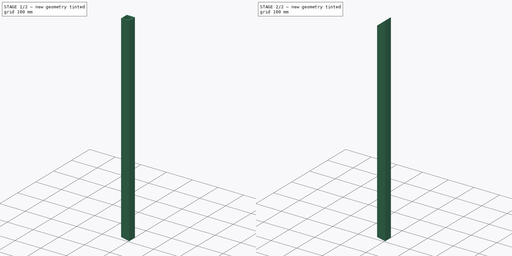
[diagram: build sequence overview — one tinted view per stage of 2, left to right]
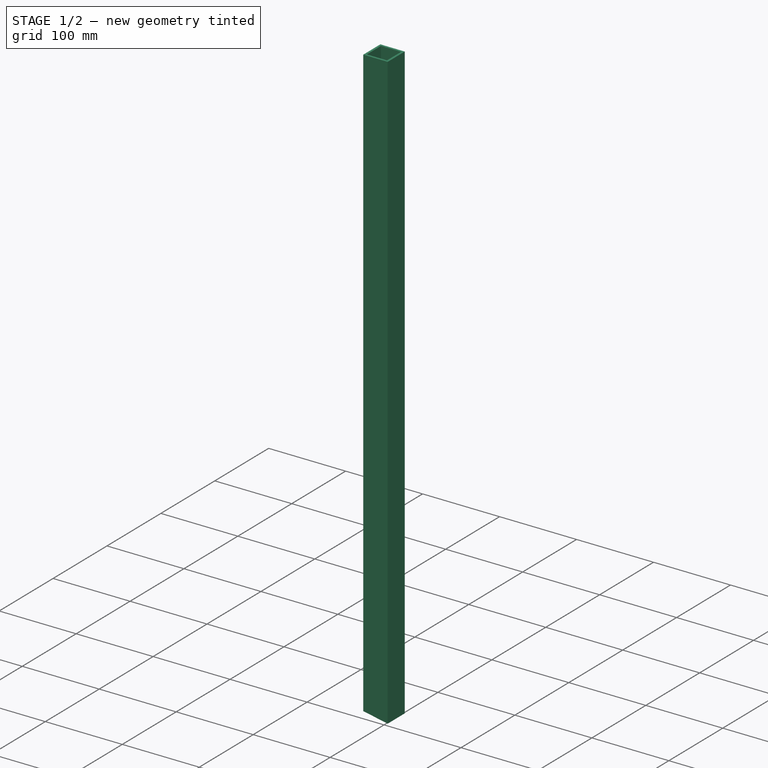
[diagram: stage 1 of 2 — iso view after this stage's code; geometry added in this stage tinted green]
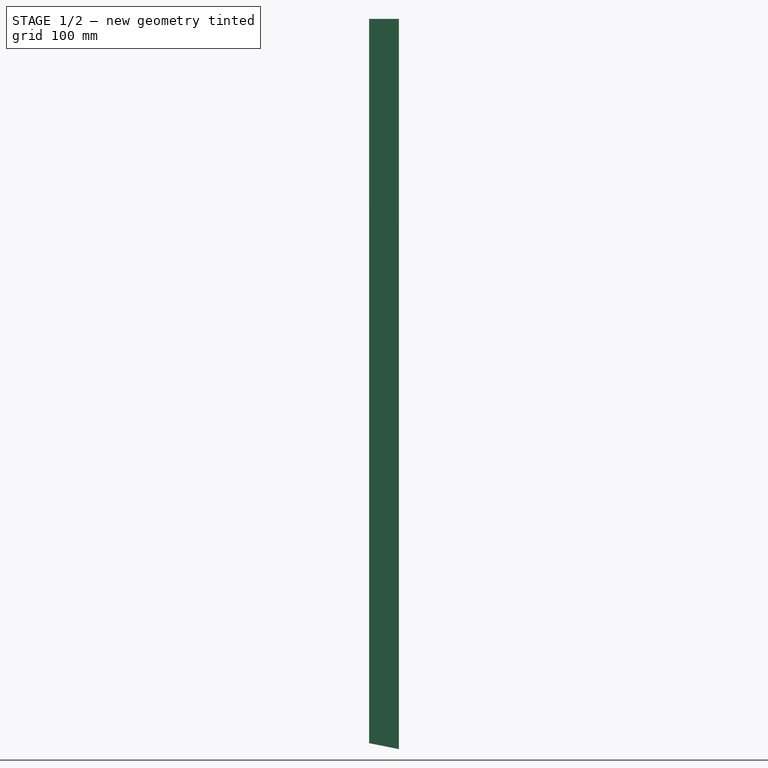
[diagram: stage 1 of 2 — front view after this stage's code; geometry added in this stage tinted green]
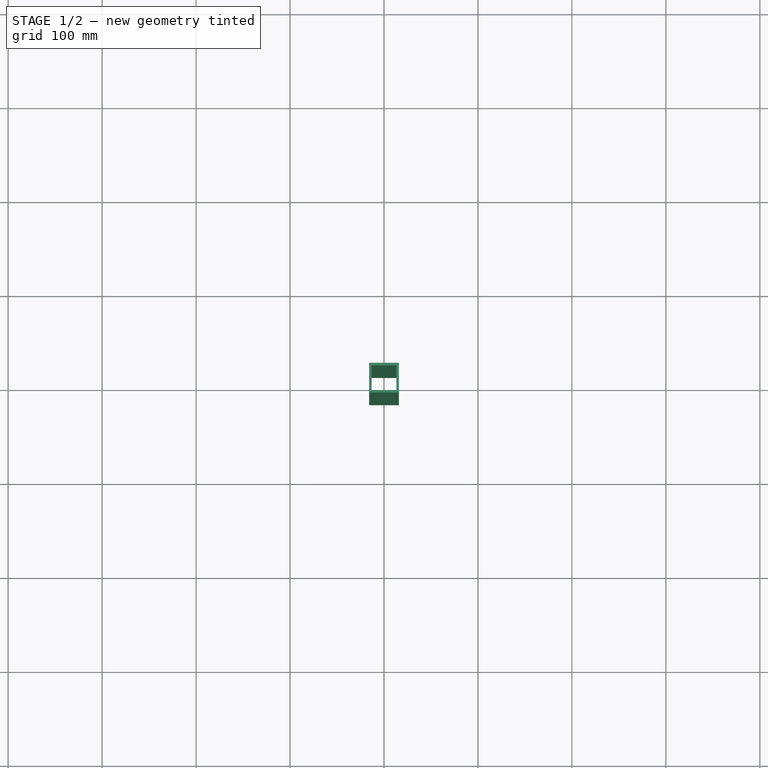
[diagram: stage 1 of 2 — top view after this stage's code; geometry added in this stage tinted green]
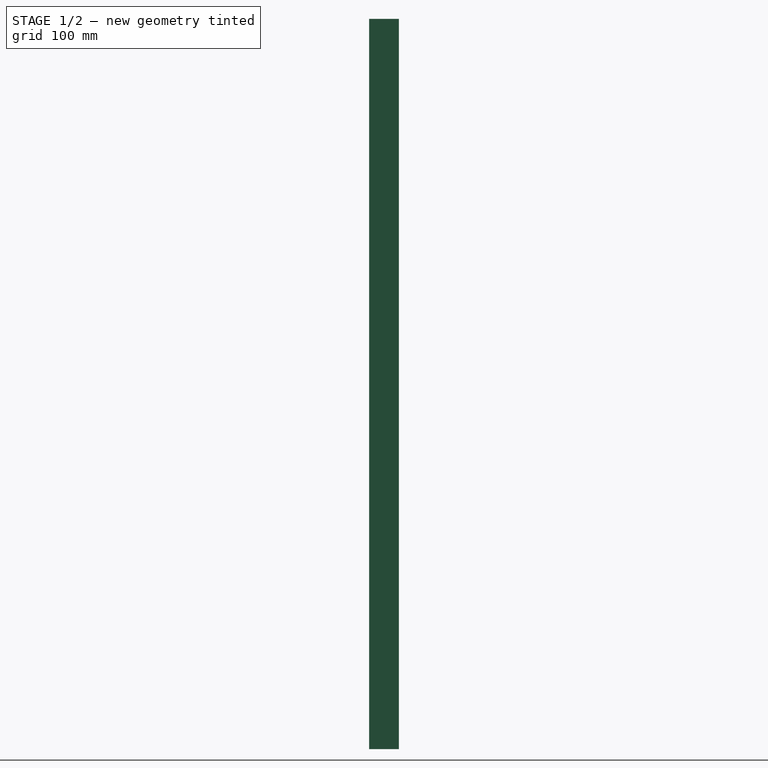
[diagram: stage 1 of 2 — right view after this stage's code; geometry added in this stage tinted green]
FCSTD DOCUMENT  (FreeCAD 0.16R6062 (Git))
Label: RollCage-Part-3
License: All rights reserved
LicenseURL: http://en.wikipedia.org/wiki/All_rights_reserved
objects: Sketcher::SketchObject×3, PartDesign::Pocket×2, PartDesign::Pad×1
note: 9 computed .brp shape members not serialized (recipe doc carries the construction recipe); baked Part::Feature solids carry a one-line shape summary decoded from their .brp

FEATURE [Sketcher::SketchObject] Sketch
  sketch-geometry (8):
    g0: LineSegment StartX=-15.875 StartY=15.875 StartZ=0 EndX=15.875 EndY=15.875 EndZ=0
    g1: LineSegment StartX=15.875 StartY=15.875 StartZ=0 EndX=15.875 EndY=-15.875 EndZ=0
    g2: LineSegment StartX=15.875 StartY=-15.875 StartZ=0 EndX=-15.875 EndY=-15.875 EndZ=0
    g3: LineSegment StartX=-15.875 StartY=-15.875 StartZ=0 EndX=-15.875 EndY=15.875 EndZ=0
    g4: LineSegment StartX=-13.1064 StartY=13.1064 StartZ=0 EndX=13.1064 EndY=13.1064 EndZ=0
    g5: LineSegment StartX=13.1064 StartY=13.1064 StartZ=0 EndX=13.1064 EndY=-13.1064 EndZ=0
    g6: LineSegment StartX=13.1064 StartY=-13.1064 StartZ=0 EndX=-13.1064 EndY=-13.1064 EndZ=0
    g7: LineSegment StartX=-13.1064 StartY=-13.1064 StartZ=0 EndX=-13.1064 EndY=13.1064 EndZ=0
  constraints (22):
    c: Coincident(g0,g1)
    c: Coincident(g1,g2)
    c: Coincident(g2,g3)
    c: Coincident(g3,g0)
    c: Horizontal(g0)
    c: Horizontal(g2)
    c: Vertical(g1)
    c: Vertical(g3)
    c: Equal(g2,g1)
    c: DistanceX(g0) = 31.75
    c: Symmetric(g1,g0,g-1)
    c: Coincident(g4,g5)
    c: Coincident(g5,g6)
    c: Coincident(g6,g7)
    c: Coincident(g7,g4)
    c: Horizontal(g4)
    c: Horizontal(g6)
    c: Vertical(g5)
    c: Vertical(g7)
    c: Equal(g6,g5)
    c: DistanceX(g4) = 26.2128
    c: Symmetric(g4,g5,g-1)
FEATURE [PartDesign::Pad] Pad
  Length = 777.09
  Length2 = 100
  Sketch = -> Sketch
  Type = 0
FEATURE [Sketcher::SketchObject] Sketch001
  ExternalGeometry = -> [Pad]
  Placement = pos=(0,-15.875,0) rot=(1,0,0;1.5708rad)
  Support = -> Pad [Face3]
  sketch-geometry (3):
    g0: LineSegment StartX=15.875 StartY=0 StartZ=0 EndX=-15.875 EndY=0 EndZ=0
    g1: LineSegment StartX=-15.875 StartY=0 StartZ=0 EndX=-15.875 EndY=6.34998 EndZ=0
    g2: LineSegment StartX=-15.875 StartY=6.34998 StartZ=0 EndX=15.875 EndY=0 EndZ=0
  constraints (7):
    c: Coincident(g-3,g0)
    c: Coincident(g0,g-3)
    c: Coincident(g0,g1)
    c: Vertical(g1)
    c: Coincident(g1,g2)
    c: Coincident(g2,g0)
    c: Angle(g2,g0) = 0.197395
FEATURE [PartDesign::Pocket] Pocket
  Length = 31.75
  Sketch = -> Sketch001
  Type = 0
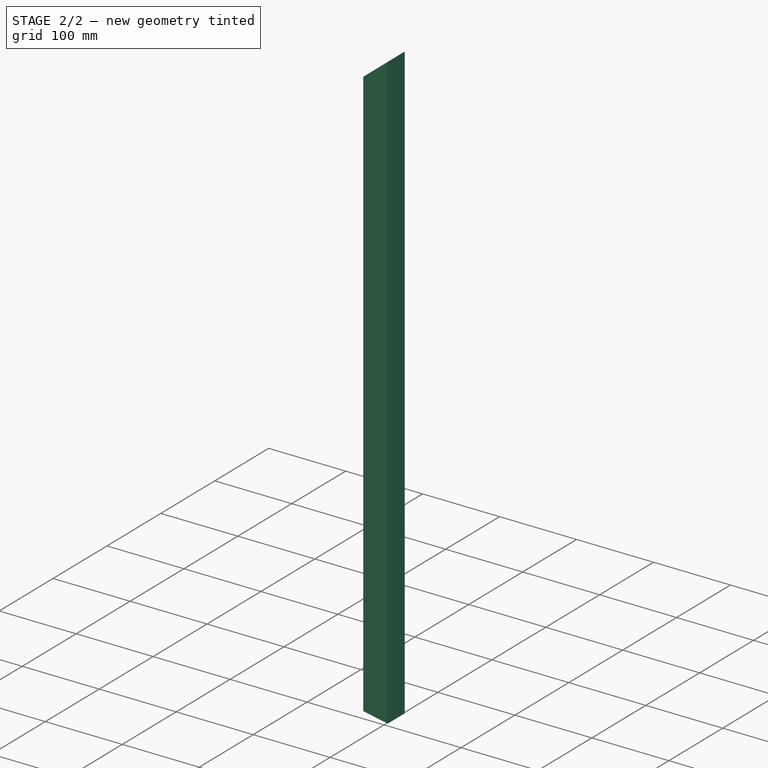
[diagram: stage 2 of 2 — iso view after this stage's code; geometry added in this stage tinted green]
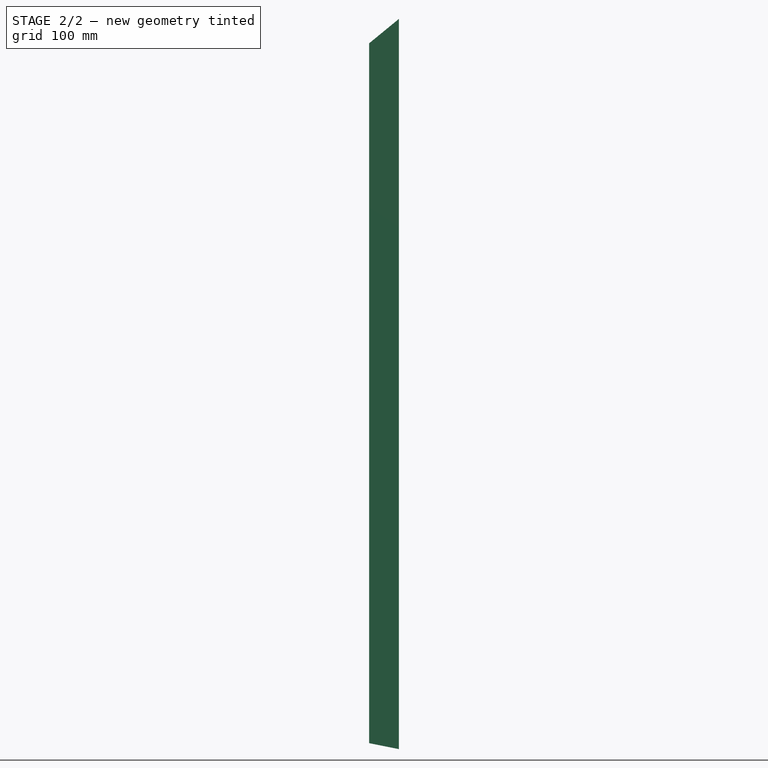
[diagram: stage 2 of 2 — front view after this stage's code; geometry added in this stage tinted green]
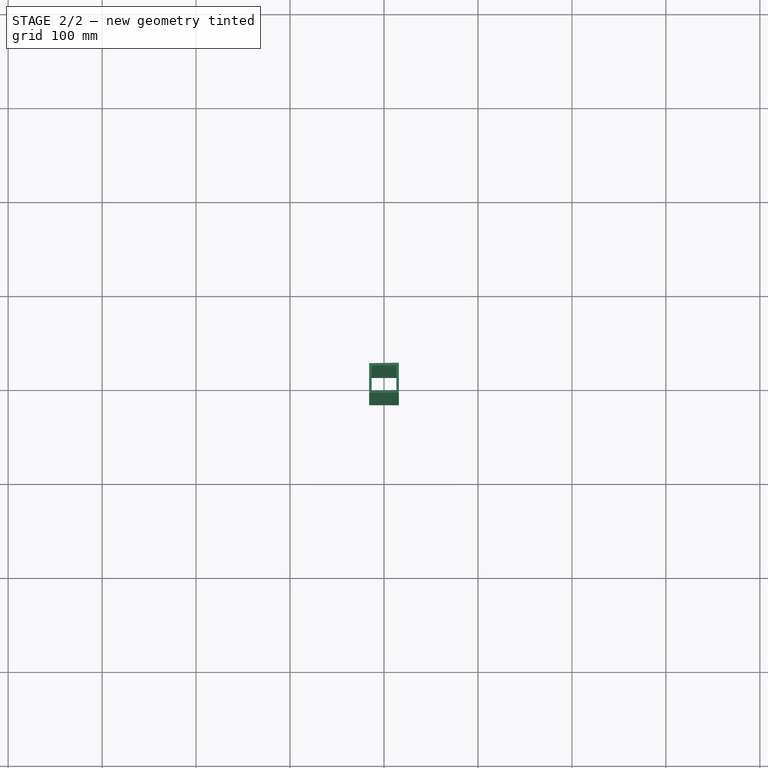
[diagram: stage 2 of 2 — top view after this stage's code; geometry added in this stage tinted green]
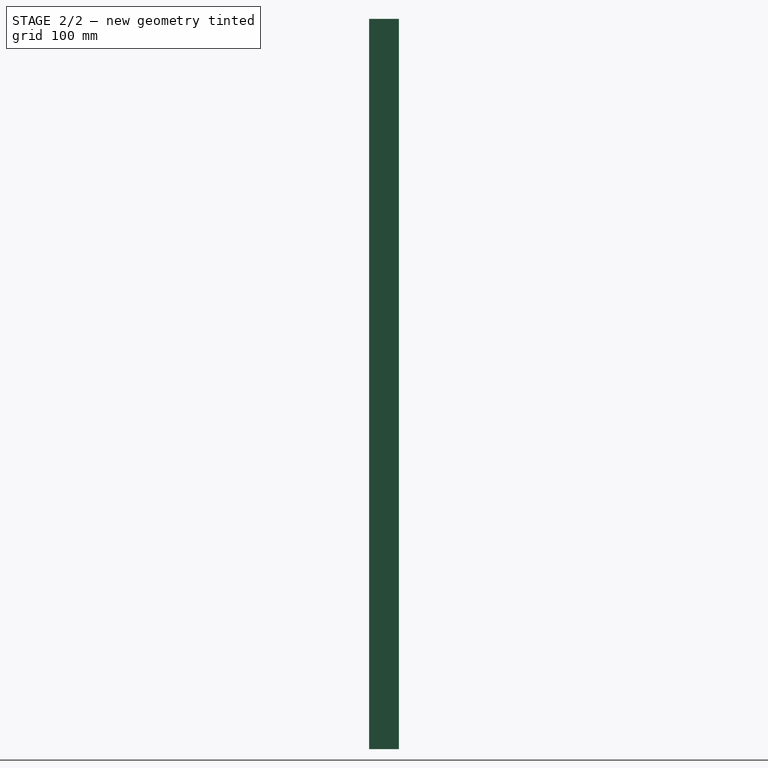
[diagram: stage 2 of 2 — right view after this stage's code; geometry added in this stage tinted green]
FEATURE [Sketcher::SketchObject] Sketch002
  ExternalGeometry = -> [Pocket]
  Placement = pos=(0,-15.875,0) rot=(1,0,0;1.5708rad)
  Support = -> Pocket [Face6]
  sketch-geometry (3):
    g0: LineSegment StartX=15.875 StartY=777.09 StartZ=0 EndX=-15.875 EndY=777.09 EndZ=0
    g1: LineSegment StartX=-15.875 StartY=777.09 StartZ=0 EndX=-15.875 EndY=751.061 EndZ=0
    g2: LineSegment StartX=-15.875 StartY=751.061 StartZ=0 EndX=15.875 EndY=777.09 EndZ=0
  constraints (7):
    c: Coincident(g-3,g0)
    c: Coincident(g0,g-3)
    c: Coincident(g0,g1)
    c: Vertical(g1)
    c: Coincident(g1,g2)
    c: Coincident(g2,g0)
    c: Angle(g-3,g2) = 0.6867
FEATURE [PartDesign::Pocket] Pocket001
  Length = 31.75
  Sketch = -> Sketch002
  Type = 0
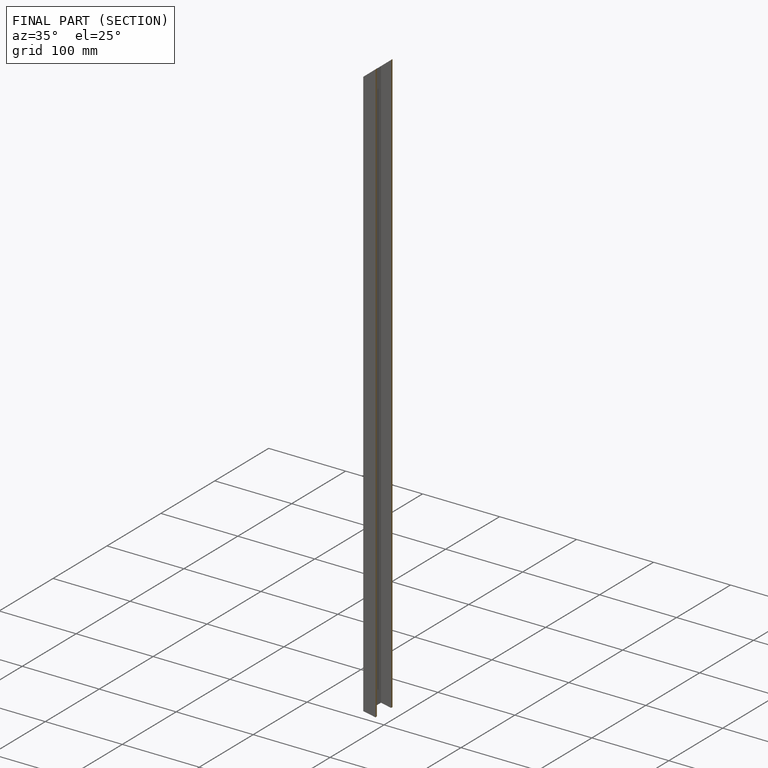
[diagram: finished part — half-section view (interior)]
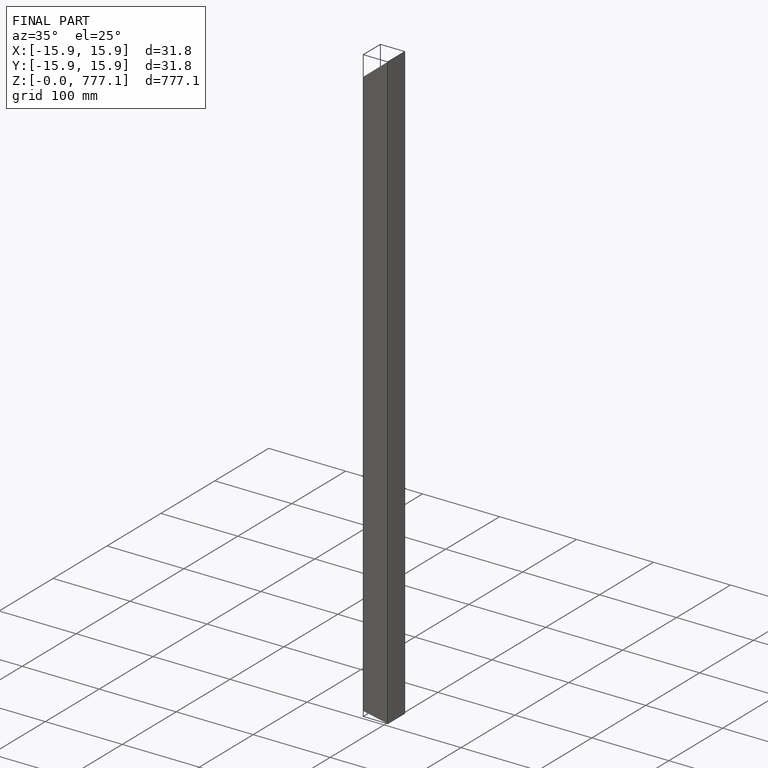
[diagram: finished part — iso view with bounding-box wireframe]
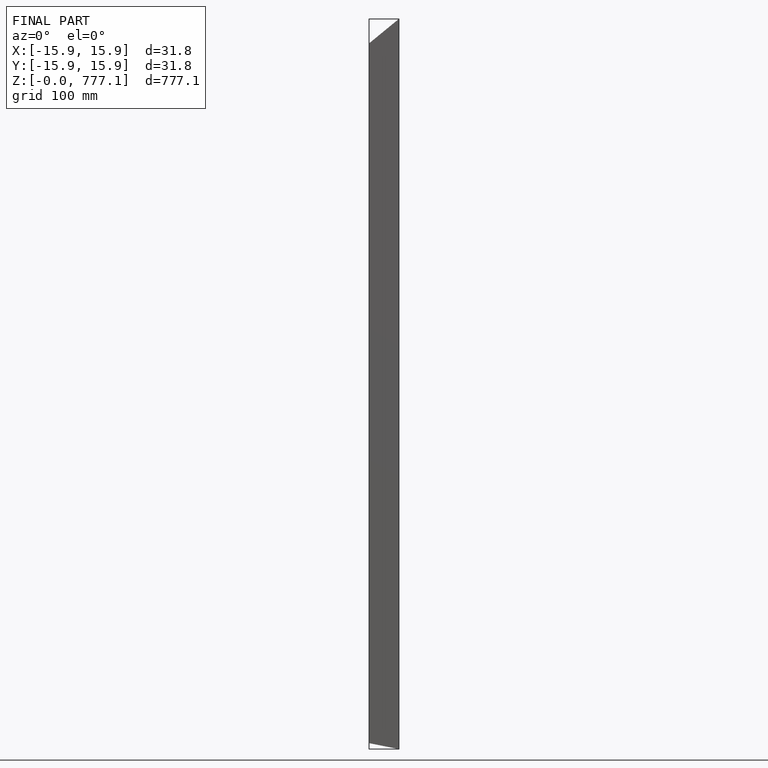
[diagram: finished part — front view with bounding-box wireframe]
